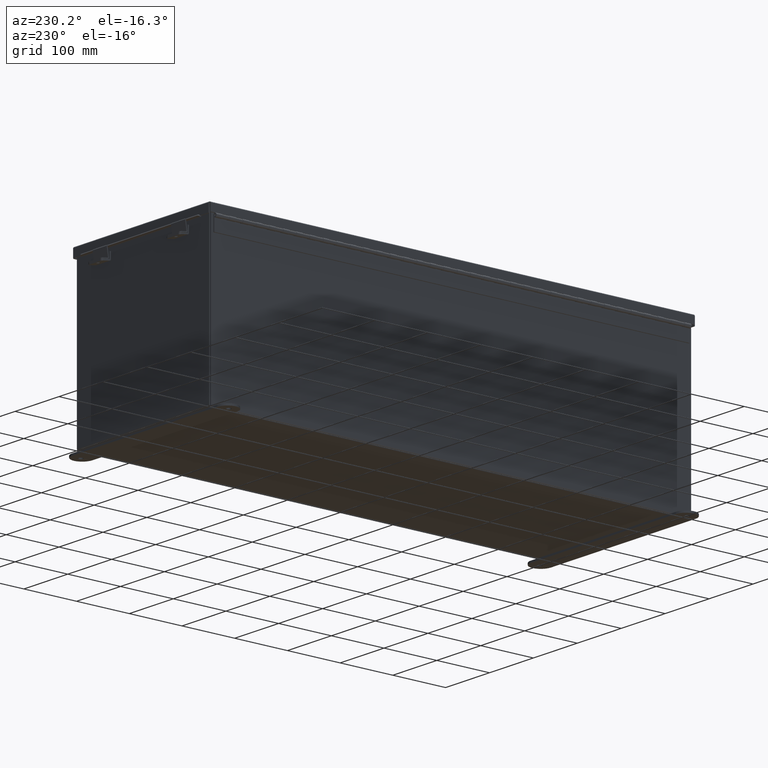
[diagram: clean part render]
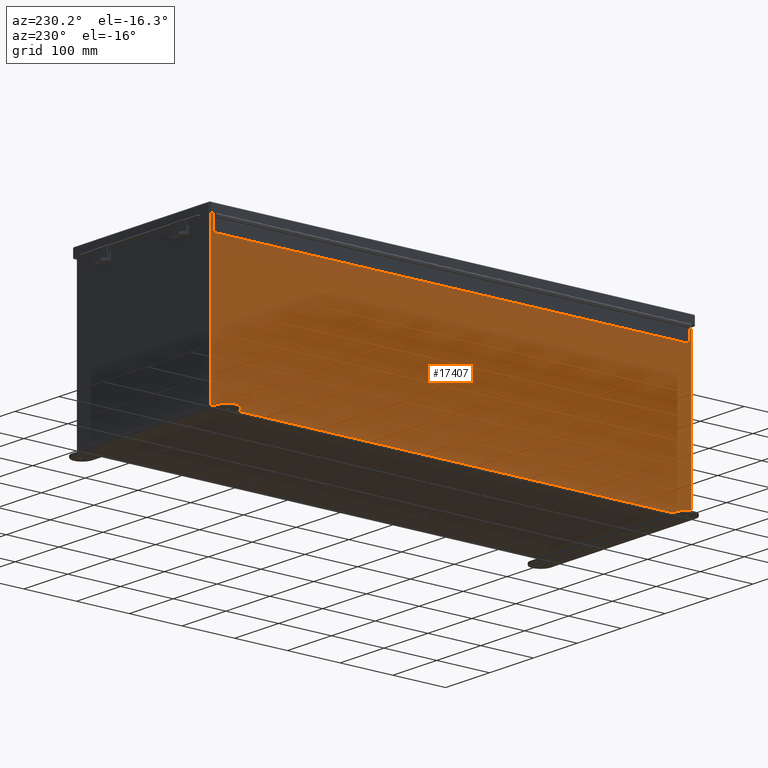
[diagram: same view with one face highlighted and labeled with its STEP entity id]
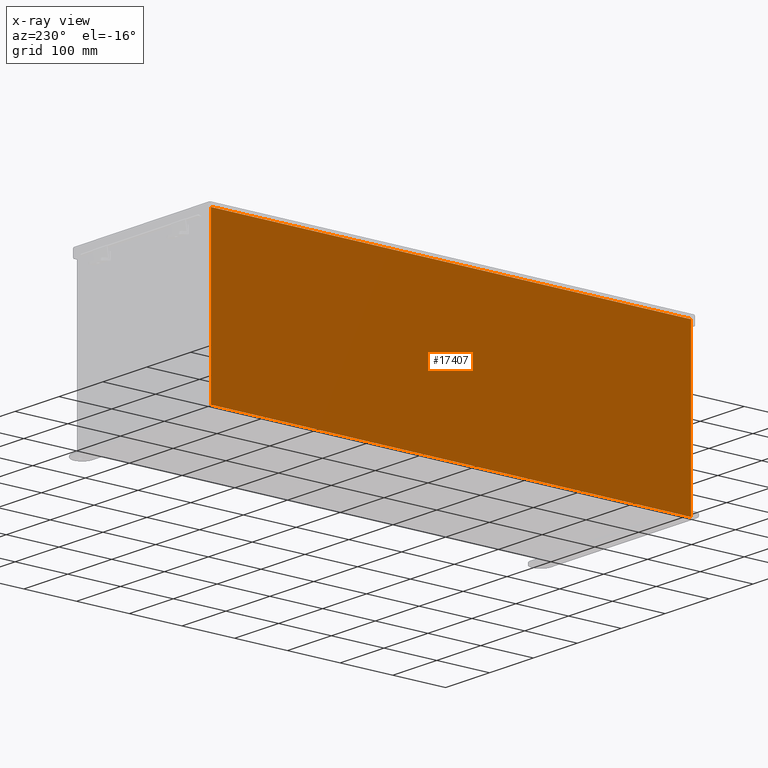
[diagram: x-ray of the same camera — body ghosted, the highlighted face saturated]
A machine part, auxiliary view. The second image highlights one B-rep face of the part: STEP entity #17407.
The next image is the same camera in x-ray: the body ghosted, the highlighted face saturated — about 0% of this face is hidden behind the body in this view.
In plain terms, the highlighted planar face has unit normal (1, 0, 0).
Its self-contained STEP definition (entity closure, byte-faithful):
#508 = DIRECTION ( 'NONE',  ( 3.503965158194252100E-015, 0.0000000000000000000, -1.000000000000000000 ) ) ;
#1985 = LINE ( 'NONE', #7432, #7376 ) ;
#2791 = VERTEX_POINT ( 'NONE', #21683 ) ;
#3223 = CARTESIAN_POINT ( 'NONE',  ( -6.000000000000043500, -17.92530000000000000, 11.83759999999999800 ) ) ;
#3310 = LINE ( 'NONE', #14445, #27839 ) ;
#5318 = LINE ( 'NONE', #3223, #16844 ) ;
#5937 = VERTEX_POINT ( 'NONE', #22616 ) ;
#6620 = CARTESIAN_POINT ( 'NONE',  ( -6.000000000000001800, 17.92530000000000000, 0.01300000000000039000 ) ) ;
#6829 = ORIENTED_EDGE ( 'NONE', *, *, #12823, .T. ) ;
#7032 = EDGE_LOOP ( 'NONE', ( #6829, #9724, #12421, #12816 ) ) ;
#7376 = VECTOR ( 'NONE', #508, 39.37007874015748100 ) ;
#7432 = CARTESIAN_POINT ( 'NONE',  ( -6.000000000000001800, 17.92530000000000000, -2.128280327564064900E-014 ) ) ;
#7730 = VERTEX_POINT ( 'NONE', #6620 ) ;
#7865 = DIRECTION ( 'NONE',  ( 0.0000000000000000000, 1.000000000000000000, 0.0000000000000000000 ) ) ;
#9024 = PLANE ( 'NONE',  #14135 ) ;
#9356 = EDGE_CURVE ( 'NONE', #21962, #7730, #3310, .T. ) ;
#9724 = ORIENTED_EDGE ( 'NONE', *, *, #26944, .T. ) ;
#12421 = ORIENTED_EDGE ( 'NONE', *, *, #9356, .F. ) ;
#12816 = ORIENTED_EDGE ( 'NONE', *, *, #29319, .T. ) ;
#12823 = EDGE_CURVE ( 'NONE', #5937, #2791, #5318, .T. ) ;
#13696 = DIRECTION ( 'NONE',  ( 1.000000000000000000, 0.0000000000000000000, 3.503965158194251300E-015 ) ) ;
#14135 = AXIS2_PLACEMENT_3D ( 'NONE', #25184, #13696, #29777 ) ;
#14445 = CARTESIAN_POINT ( 'NONE',  ( -6.000000000000001800, 17.92530000000000000, 0.01299999999999984300 ) ) ;
#15598 = CARTESIAN_POINT ( 'NONE',  ( -6.000000000000001800, -17.92530000000000000, -1.797897460830293300E-014 ) ) ;
#16832 = VECTOR ( 'NONE', #29405, 39.37007874015748100 ) ;
#16844 = VECTOR ( 'NONE', #7865, 39.37007874015748100 ) ;
#17407 = ADVANCED_FACE ( 'NONE', ( #22882 ), #9024, .F. ) ;
#21683 = CARTESIAN_POINT ( 'NONE',  ( -6.000000000000043500, 17.92530000000000000, 11.83759999999999800 ) ) ;
#21962 = VERTEX_POINT ( 'NONE', #29262 ) ;
#22616 = CARTESIAN_POINT ( 'NONE',  ( -6.000000000000043500, -17.92529999999998900, 11.83759999999999800 ) ) ;
#22882 = FACE_OUTER_BOUND ( 'NONE', #7032, .T. ) ;
#23497 = DIRECTION ( 'NONE',  ( 1.068021197668374100E-031, 1.000000000000000000, -3.048036009064578300E-017 ) ) ;
#25184 = CARTESIAN_POINT ( 'NONE',  ( -6.000000000000001800, 0.0000000000000000000, -2.128280327564064900E-014 ) ) ;
#26944 = EDGE_CURVE ( 'NONE', #2791, #7730, #1985, .T. ) ;
#27839 = VECTOR ( 'NONE', #23497, 39.37007874015748100 ) ;
#29093 = LINE ( 'NONE', #15598, #16832 ) ;
#29262 = CARTESIAN_POINT ( 'NONE',  ( -6.000000000000001800, -17.92530000000000000, 0.01300000000000093600 ) ) ;
#29319 = EDGE_CURVE ( 'NONE', #21962, #5937, #29093, .T. ) ;
#29405 = DIRECTION ( 'NONE',  ( -3.503965158194252100E-015, 1.844192188523290500E-016, 1.000000000000000000 ) ) ;
#29777 = DIRECTION ( 'NONE',  ( 3.503965158194251300E-015, 0.0000000000000000000, -1.000000000000000000 ) ) ;